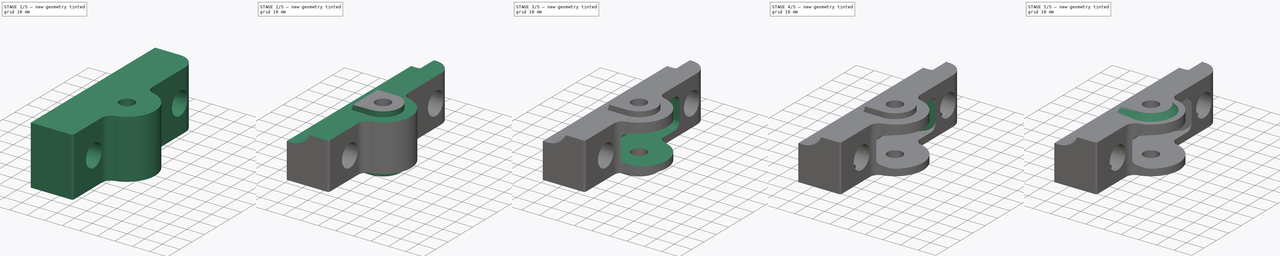
[diagram: build sequence overview — one tinted view per stage of 5, left to right]
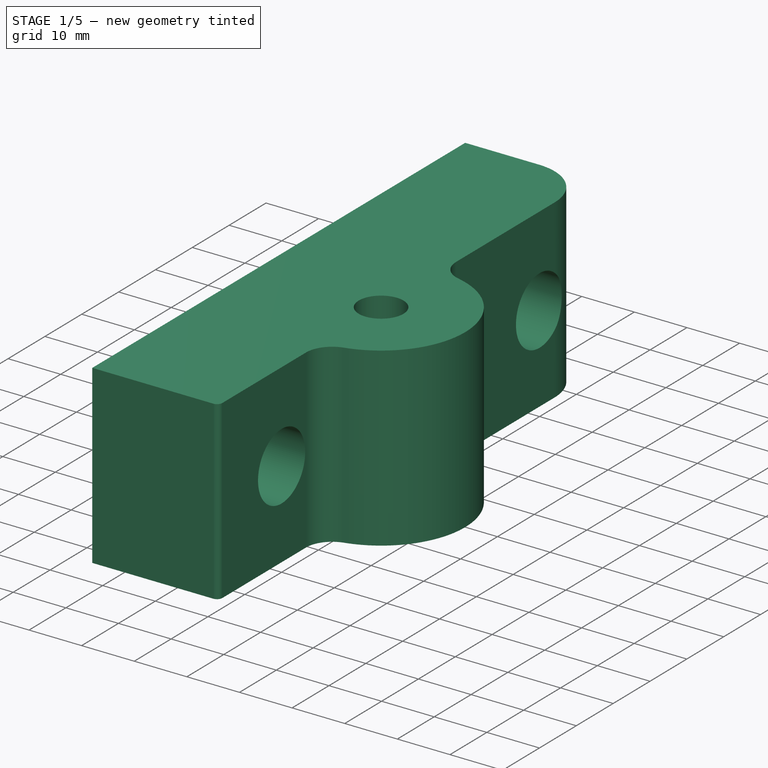
[diagram: stage 1 of 5 — iso view after this stage's code; geometry added in this stage tinted green]
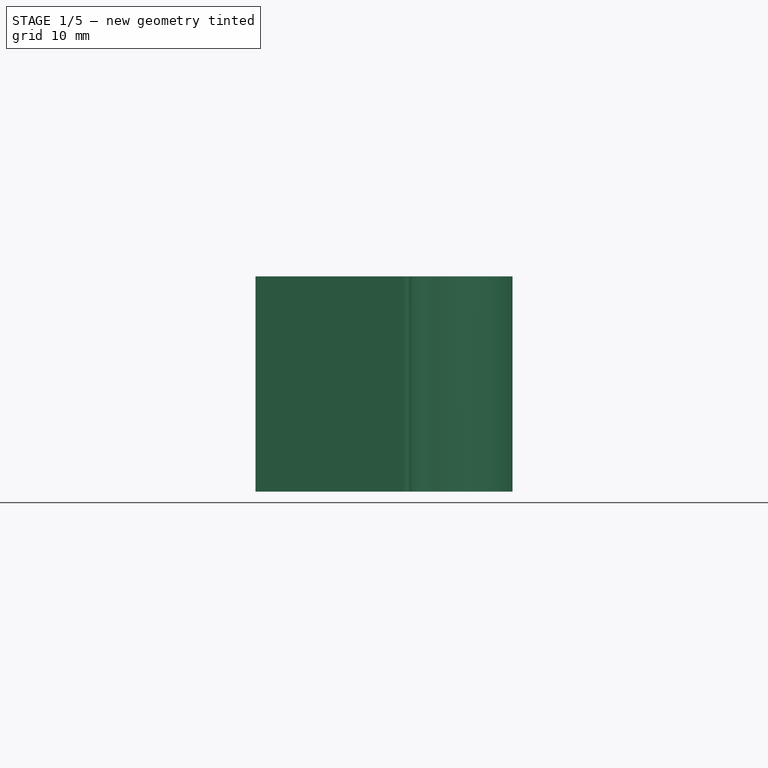
[diagram: stage 1 of 5 — front view after this stage's code; geometry added in this stage tinted green]
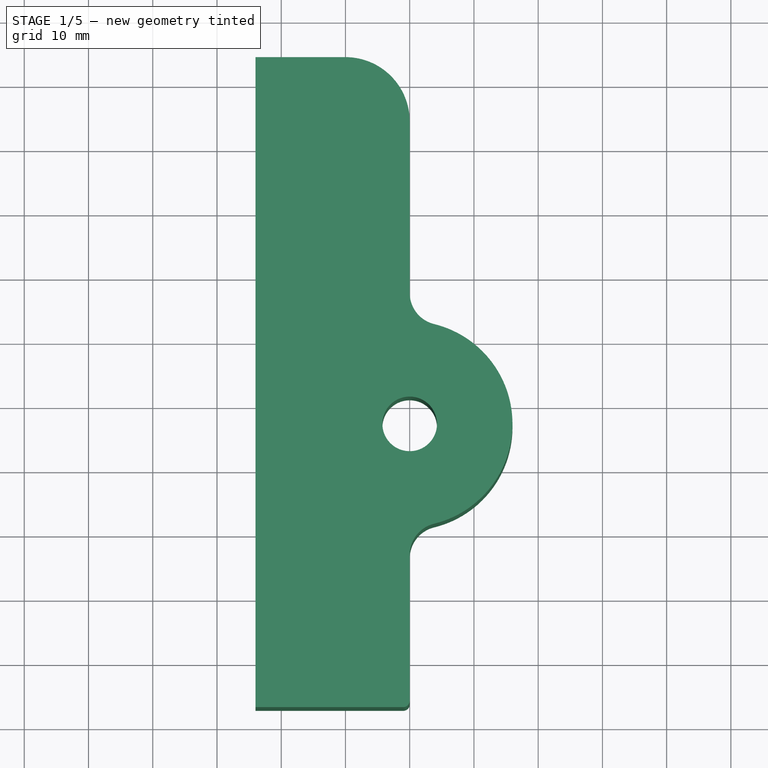
[diagram: stage 1 of 5 — top view after this stage's code; geometry added in this stage tinted green]
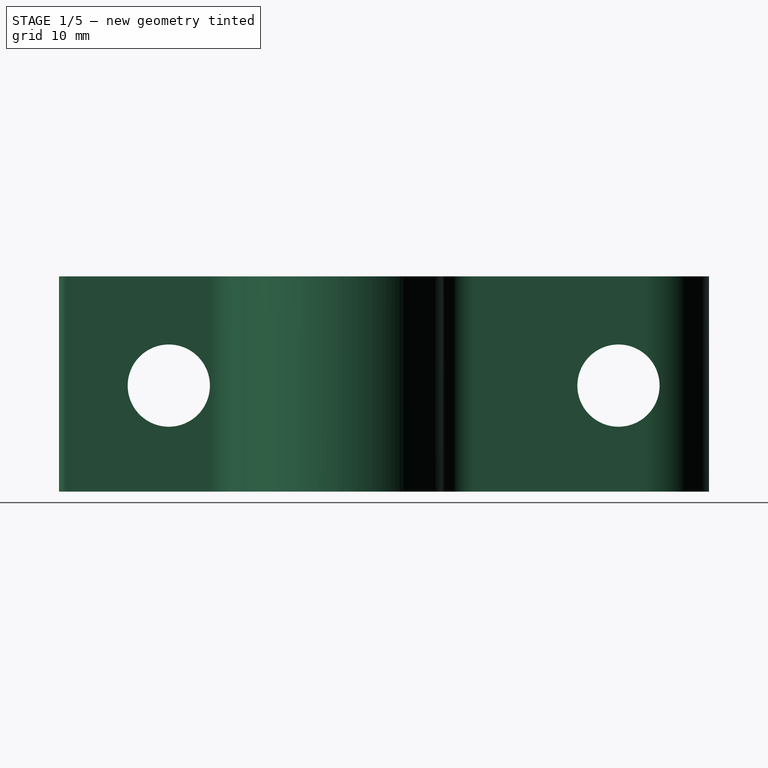
[diagram: stage 1 of 5 — right view after this stage's code; geometry added in this stage tinted green]
FCSTD DOCUMENT  (FreeCAD 0.16R5480 (Git))
Label: z_idler_body_olive_exten
License: All rights reserved
LicenseURL: http://en.wikipedia.org/wiki/All_rights_reserved
objects: Sketcher::SketchObject×12, PartDesign::Pocket×10, PartDesign::Pad×2, PartDesign::Chamfer×2, PartDesign::Fillet×1
note: 39 computed .brp shape members not serialized (recipe doc carries the construction recipe); baked Part::Feature solids carry a one-line shape summary decoded from their .brp

FEATURE [Sketcher::SketchObject] Sketch
  sketch-geometry (14):
    g0: ArcOfCircle CenterX=0 CenterY=-3 CenterZ=0 NormalX=0 NormalY=0 NormalZ=1 Radius=16 StartAngle=4.71239 EndAngle=7.85398
    g1: Circle CenterX=0 CenterY=-3 CenterZ=0 NormalX=0 NormalY=0 NormalZ=1 Radius=4.25
    g2: LineSegment StartX=0 StartY=44.1 StartZ=0 EndX=0 EndY=13 EndZ=0
    g3: LineSegment StartX=-24 StartY=54.1 StartZ=0 EndX=-24 EndY=-47.1 EndZ=0
    g4: LineSegment StartX=0 StartY=-19 StartZ=0 EndX=0 EndY=-46.1 EndZ=0
    g5: LineSegment [constr] StartX=-120 StartY=40 StartZ=0 EndX=90 EndY=40 EndZ=0
    g6: LineSegment [constr] StartX=-120 StartY=-30 StartZ=0 EndX=90 EndY=-30 EndZ=0
    g7: LineSegment StartX=-24 StartY=54.1 StartZ=0 EndX=-10 EndY=54.1 EndZ=0
    g8: LineSegment StartX=-24 StartY=-47.1 StartZ=0 EndX=-1 EndY=-47.1 EndZ=0
    g9: LineSegment [constr] StartX=-120 StartY=0 StartZ=0 EndX=90 EndY=0 EndZ=0
    g10: LineSegment [constr] StartX=0 StartY=110 StartZ=0 EndX=0 EndY=-100 EndZ=0
    g11: LineSegment [constr] StartX=90 StartY=40 StartZ=0 EndX=90 EndY=-30 EndZ=0
    g12: ArcOfCircle CenterX=-10 CenterY=44.1 CenterZ=0 NormalX=0 NormalY=0 NormalZ=1 Radius=10 StartAngle=0 EndAngle=1.5708
    g13: ArcOfCircle CenterX=-1 CenterY=-46.1 CenterZ=0 NormalX=0 NormalY=0 NormalZ=1 Radius=1 StartAngle=4.71239 EndAngle=6.28319
  constraints (40):
    c: Radius(g0) = 16
    c: Radius(g1) = 4.25
    c: Vertical(g2)
    c: Vertical(g3)
    c: Horizontal(g5)
    c: Horizontal(g6)
    c: Horizontal(g8)
    c: Horizontal(g7)
    c: DistanceY(g5,g6) = -70
    c: DistanceY(g5,g7) = 14.1
    c: Coincident(g3,g7)
    c: Coincident(g3,g8)
    c: PointOnObject(g9,g-1)
    c: Horizontal(g9)
    c: Vertical(g10)
    c: DistanceY(g6,g9) = 30
    c: PointOnObject(g1,g10)
    c: Vertical(g4)
    c: Coincident(g0,g1)
    c: Distance(g9) = 210
    c: DistanceX(g-1,g9) = 90
    c: Equal(g9,g5)
    c: Equal(g5,g6)
    c: Vertical(g11)
    c: PointOnObject(g9,g11)
    c: Equal(g9,g10)
    c: DistanceY(g-1,g10) = -100
    c: Tangent(g7,g12) = 1.5708
    c: Tangent(g2,g12) = 1.5708
    c: Radius(g12) = 10
    c: Tangent(g8,g13) = -1.5708
    c: Tangent(g4,g13) = 1.5708
    c: Distance(g3,g6) = 17.1
    c: PointOnObject(g-1,g4)
    c: DistanceX(g-1,g3) = -24
    c: Radius(g13) = 1
    c: DistanceY(g-1,g0) = -3
    c: PointOnObject(g-1,g10)
    c: Coincident(g0,g2)
    c: Coincident(g0,g4)
FEATURE [PartDesign::Pad] Pad
  Length = 28.5
  Length2 = 5
  Sketch = -> Sketch
  Type = 4
FEATURE [PartDesign::Fillet] Fillet
  Base = -> Pad [Edge14,Edge11]
  Radius = 5
FEATURE [Sketcher::SketchObject] Sketch002
  Placement = pos=(0,0,0) rot=(0.57735,0.57735,0.57735;2.0944rad)
  Support = -> Fillet [Face10]
  sketch-geometry (16):
    g0: LineSegment [constr] StartX=40 StartY=11.5 StartZ=0 EndX=40 EndY=-8.5 EndZ=0
    g1: LineSegment [constr] StartX=-30 StartY=11.5 StartZ=0 EndX=-30 EndY=-8.5 EndZ=0
    g2: LineSegment [constr] StartX=-30 StartY=11.5 StartZ=0 EndX=40 EndY=11.5 EndZ=0
    g3: Circle CenterX=-30 CenterY=11.5 CenterZ=0 NormalX=0 NormalY=0 NormalZ=1 Radius=6.4
    g4: Circle CenterX=40 CenterY=11.5 CenterZ=0 NormalX=0 NormalY=0 NormalZ=1 Radius=6.4
    g5: LineSegment [constr] StartX=-17 StartY=20.2 StartZ=0 EndX=27 EndY=20.2 EndZ=0
    g6: LineSegment [constr] StartX=30 StartY=17.2 StartZ=0 EndX=30 EndY=5.8 EndZ=0
    g7: LineSegment [constr] StartX=27 StartY=2.8 StartZ=0 EndX=-17 EndY=2.8 EndZ=0
    g8: LineSegment [constr] StartX=-20 StartY=5.8 StartZ=0 EndX=-20 EndY=17.2 EndZ=0
    g9: LineSegment [constr] StartX=0 StartY=43.5 StartZ=0 EndX=0 EndY=11.5 EndZ=0
    g10: LineSegment [constr] StartX=17.5 StartY=43.5 StartZ=0 EndX=17.5 EndY=11.5 EndZ=0
    g11: LineSegment [constr] StartX=-10 StartY=43.5 StartZ=0 EndX=-10 EndY=11.5 EndZ=0
    g12: ArcOfCircle [constr] CenterX=27 CenterY=17.2 CenterZ=0 NormalX=0 NormalY=0 NormalZ=1 Radius=3 StartAngle=0 EndAngle=1.5708
    g13: ArcOfCircle [constr] CenterX=27 CenterY=5.8 CenterZ=0 NormalX=0 NormalY=0 NormalZ=1 Radius=3 StartAngle=4.71239 EndAngle=6.28319
    g14: ArcOfCircle [constr] CenterX=-17 CenterY=17.2 CenterZ=0 NormalX=0 NormalY=0 NormalZ=1 Radius=3 StartAngle=1.5708 EndAngle=3.14159
    g15: ArcOfCircle [constr] CenterX=-17 CenterY=5.8 CenterZ=0 NormalX=0 NormalY=0 NormalZ=1 Radius=3 StartAngle=3.14159 EndAngle=4.71239
  constraints (46):
    c: Vertical(g1)
    c: Vertical(g0)
    c: DistanceX(g-1,g0) = 40
    c: DistanceX(g1,g0) = 70
    c: Horizontal(g2)
    c: Coincident(g0,g2)
    c: Coincident(g1,g2)
    c: Coincident(g1,g3)
    c: Coincident(g0,g4)
    c: Radius(g3) = 6.4
    c: Equal(g3,g4)
    c: Horizontal(g5)
    c: Horizontal(g7)
    c: Vertical(g6)
    c: Vertical(g8)
    c: DistanceY(g-1,g1) = 11.5
    c: Distance(g0) = 20
    c: Equal(g1,g0)
    c: PointOnObject(g9,g-2)
    c: Vertical(g9)
    c: Vertical(g10)
    c: Vertical(g11)
    c: DistanceX(g9,g10) = 17.5
    c: PointOnObject(g10,g2)
    c: PointOnObject(g9,g2)
    c: PointOnObject(g11,g2)
    c: Equal(g11,g9)
    c: Equal(g9,g10)
    c: Distance(g10) = 32
    c: DistanceX(g11,g9) = 10
    c: Tangent(g5,g12) = 1.5708
    c: Tangent(g6,g12) = 1.5708
    c: DistanceY(g5,g0) = -8.7
    c: Radius(g12) = 3
    c: Tangent(g6,g13) = 1.5708
    c: Tangent(g7,g13) = 1.5708
    c: DistanceY(g7,g0) = 8.7
    c: DistanceX(g6,g0) = 10
    c: Equal(g13,g12)
    c: Tangent(g5,g14) = 1.5708
    c: Tangent(g8,g14) = 1.5708
    c: Radius(g14) = 3
    c: Tangent(g8,g15) = 1.5708
    c: Tangent(g7,g15) = 1.5708
    c: Equal(g15,g14)
    c: DistanceX(g1,g8) = 10
FEATURE [PartDesign::Pocket] Pocket
  Length = 5
  Midplane = true
  Sketch = -> Sketch002
  Type = 1
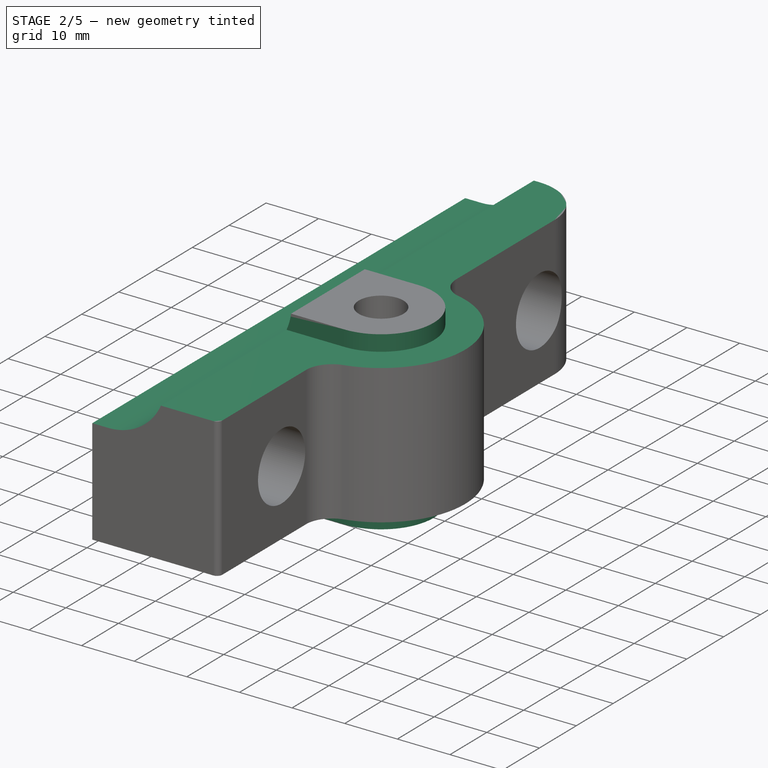
[diagram: stage 2 of 5 — iso view after this stage's code; geometry added in this stage tinted green]
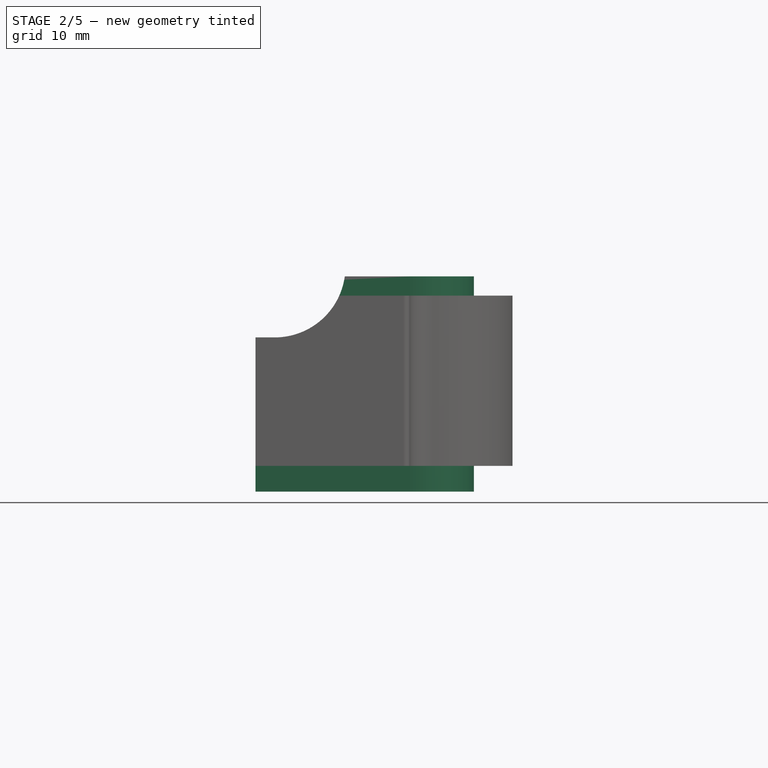
[diagram: stage 2 of 5 — front view after this stage's code; geometry added in this stage tinted green]
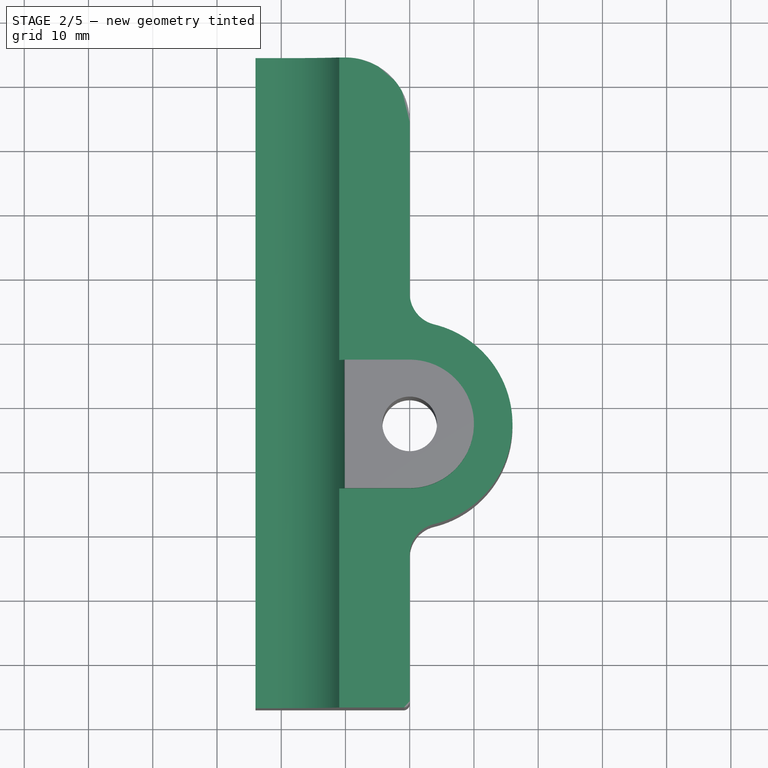
[diagram: stage 2 of 5 — top view after this stage's code; geometry added in this stage tinted green]
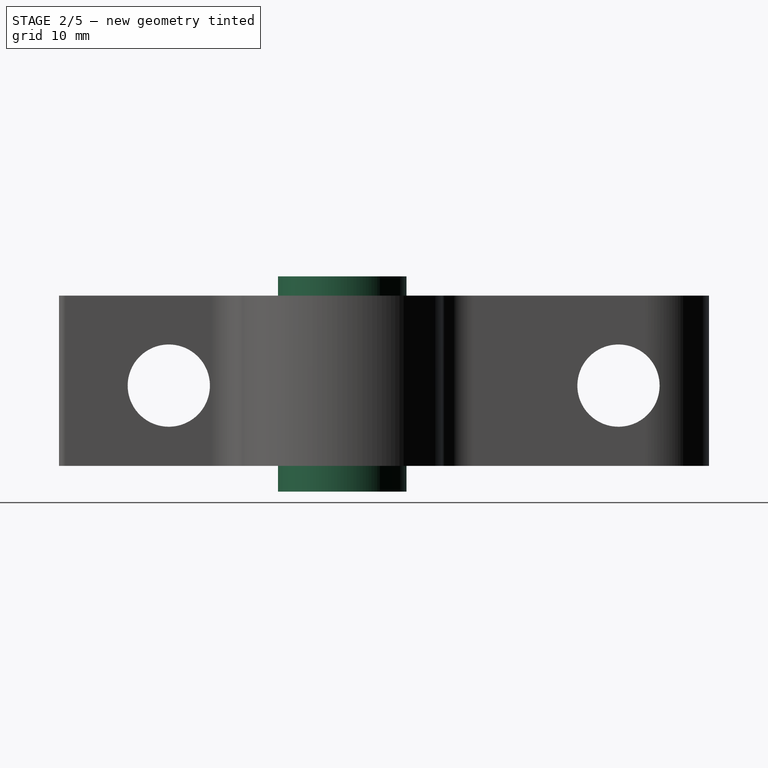
[diagram: stage 2 of 5 — right view after this stage's code; geometry added in this stage tinted green]
FEATURE [Sketcher::SketchObject] Sketch013
  Placement = pos=(0,0,28.5) rot=(0,0,1;0rad)
  Support = -> Pocket [Face5]
  sketch-geometry (8):
    g0: ArcOfCircle CenterX=0 CenterY=-3 CenterZ=0 NormalX=0 NormalY=0 NormalZ=1 Radius=10 StartAngle=4.71239 EndAngle=7.85398
    g1: LineSegment StartX=-40 StartY=60 StartZ=0 EndX=30 EndY=60 EndZ=0
    g2: LineSegment StartX=30 StartY=60 StartZ=0 EndX=30 EndY=-60 EndZ=0
    g3: LineSegment StartX=30 StartY=-60 StartZ=0 EndX=-40 EndY=-60 EndZ=0
    g4: LineSegment StartX=-40 StartY=-60 StartZ=0 EndX=-40 EndY=-13 EndZ=0
    g5: LineSegment StartX=-40 StartY=7 StartZ=0 EndX=5e-12 EndY=7 EndZ=0
    g6: LineSegment StartX=-40 StartY=-13 StartZ=0 EndX=3e-12 EndY=-13 EndZ=0
    g7: LineSegment StartX=-40 StartY=7 StartZ=0 EndX=-40 EndY=60 EndZ=0
  constraints (24):
    c: Coincident(g1,g2)
    c: Coincident(g1,g7)
    c: Coincident(g2,g3)
    c: Coincident(g3,g4)
    c: Coincident(g4,g6)
    c: Coincident(g5,g7)
    c: Horizontal(g5)
    c: Horizontal(g6)
    c: DistanceX(g5) = 40
    c: Equal(g6,g5)
    c: Distance(g-1,g3) = 60
    c: Distance(g2) = 120
    c: Vertical(g7)
    c: Vertical(g4)
    c: Vertical(g2)
    c: Horizontal(g1)
    c: Horizontal(g3)
    c: Radius(g0) = 10
    c: DistanceY(g-1,g0) = -3
    c: PointOnObject(g0,g-2)
    c: Coincident(g0,g6)
    c: Coincident(g0,g5)
    c: PointOnObject(g0,g-2)
    c: PointOnObject(g0,g-2)
FEATURE [PartDesign::Pocket] Pocket001
  Length = 3
  Sketch = -> Sketch013
  Type = 0
FEATURE [Sketcher::SketchObject] Sketch024
  Placement = pos=(0,0,-5) rot=(1,0,0;3.14159rad)
  Support = -> Pocket001 [Face2]
  sketch-geometry (8):
    g0: LineSegment StartX=5e-12 StartY=13 StartZ=0 EndX=-40 EndY=13 EndZ=0
    g1: LineSegment StartX=-40 StartY=-7 StartZ=0 EndX=3e-12 EndY=-7 EndZ=0
    g2: LineSegment StartX=-40 StartY=13 StartZ=0 EndX=-40 EndY=65 EndZ=0
    g3: LineSegment StartX=-40 StartY=65 StartZ=0 EndX=24 EndY=65 EndZ=0
    g4: LineSegment StartX=24 StartY=65 StartZ=0 EndX=24 EndY=-65 EndZ=0
    g5: LineSegment StartX=24 StartY=-65 StartZ=0 EndX=-40 EndY=-65 EndZ=0
    g6: LineSegment StartX=-40 StartY=-7 StartZ=0 EndX=-40 EndY=-65 EndZ=0
    g7: ArcOfCircle CenterX=0 CenterY=3 CenterZ=0 NormalX=0 NormalY=0 NormalZ=1 Radius=10 StartAngle=4.71239 EndAngle=7.85398
  constraints (25):
    c: Horizontal(g1)
    c: Horizontal(g0)
    c: Coincident(g1,g6)
    c: Coincident(g5,g6)
    c: Coincident(g2,g3)
    c: Coincident(g3,g4)
    c: Coincident(g4,g5)
    c: Horizontal(g3)
    c: Horizontal(g5)
    c: Vertical(g2)
    c: Vertical(g6)
    c: Vertical(g4)
    c: Coincident(g0,g2)
    c: DistanceX(g-1,g0) = -40
    c: PointOnObject(g1,g2)
    c: DistanceY(g-1,g4) = -65
    c: DistanceY(g4) = -130
    c: DistanceX(g-1,g3) = 24
    c: Radius(g7) = 10
    c: DistanceY(g-1,g7) = 3
    c: PointOnObject(g7,g-2)
    c: Coincident(g7,g1)
    c: Coincident(g7,g0)
    c: PointOnObject(g0,g-2)
    c: PointOnObject(g1,g-2)
FEATURE [PartDesign::Pocket] Pocket002
  Length = 4
  Sketch = -> Sketch024
  Type = 0
FEATURE [Sketcher::SketchObject] Sketch029
  Placement = pos=(0,54.1,0) rot=(0,0.707107,0.707107;3.14159rad)
  Support = -> Pocket002 [Face8]
  sketch-geometry (4):
    g0: LineSegment [constr] StartX=21 StartY=19 StartZ=0 EndX=21 EndY=-10 EndZ=0
    g1: ArcOfCircle CenterX=21 CenterY=30 CenterZ=0 NormalX=0 NormalY=0 NormalZ=1 Radius=11 StartAngle=0 EndAngle=4.71239
    g2: LineSegment StartX=21 StartY=19 StartZ=0 EndX=32 EndY=19 EndZ=0
    g3: LineSegment StartX=32 StartY=30 StartZ=0 EndX=32 EndY=19 EndZ=0
  constraints (4):
    c: Coincident(g0,g1)
    c: Coincident(g0,g2)
    c: Coincident(g1,g3)
    c: Coincident(g2,g3)
FEATURE [PartDesign::Pocket] Pocket003
  Length = 5
  Sketch = -> Sketch029
  Type = 1
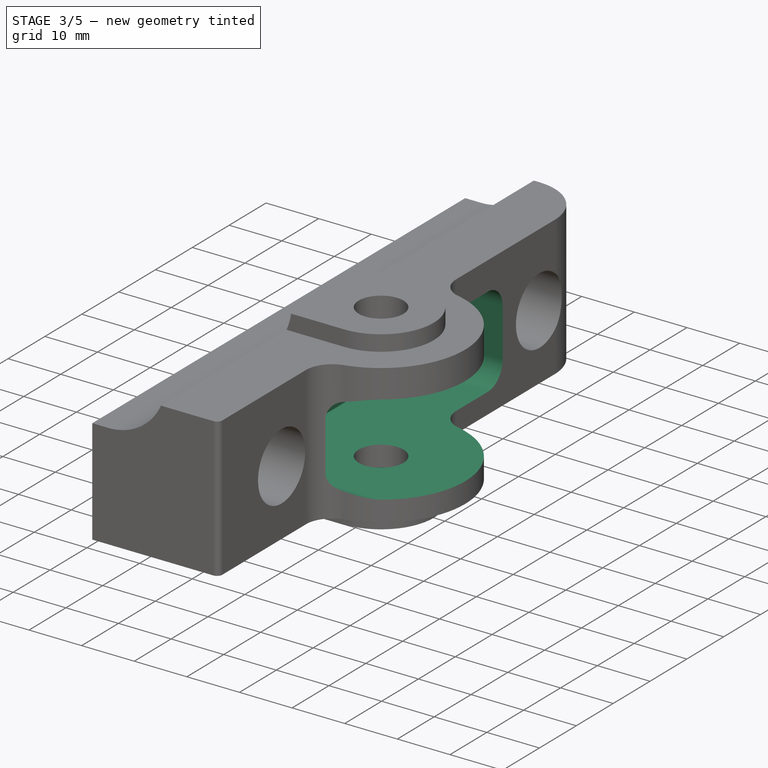
[diagram: stage 3 of 5 — iso view after this stage's code; geometry added in this stage tinted green]
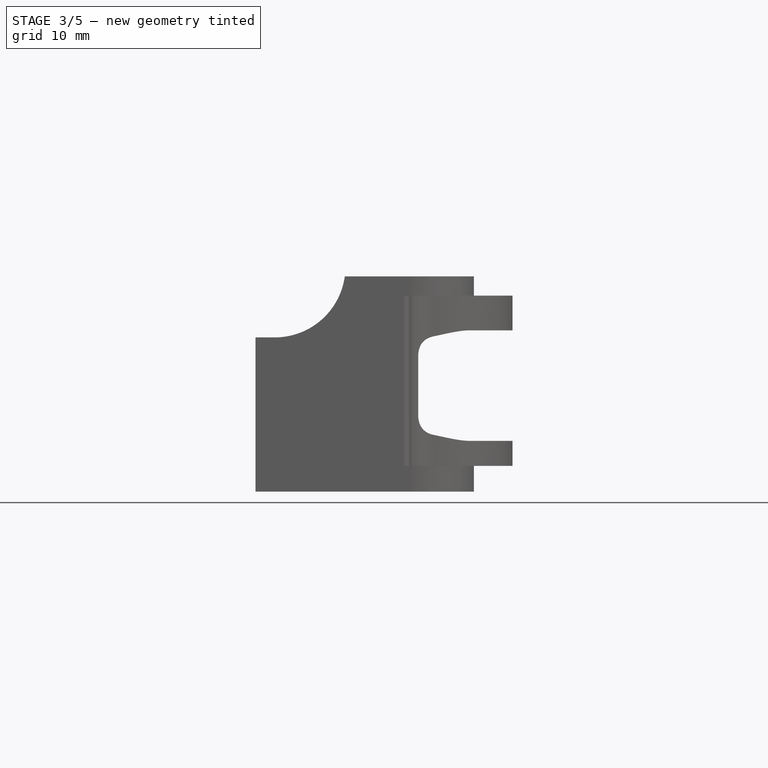
[diagram: stage 3 of 5 — front view after this stage's code; geometry added in this stage tinted green]
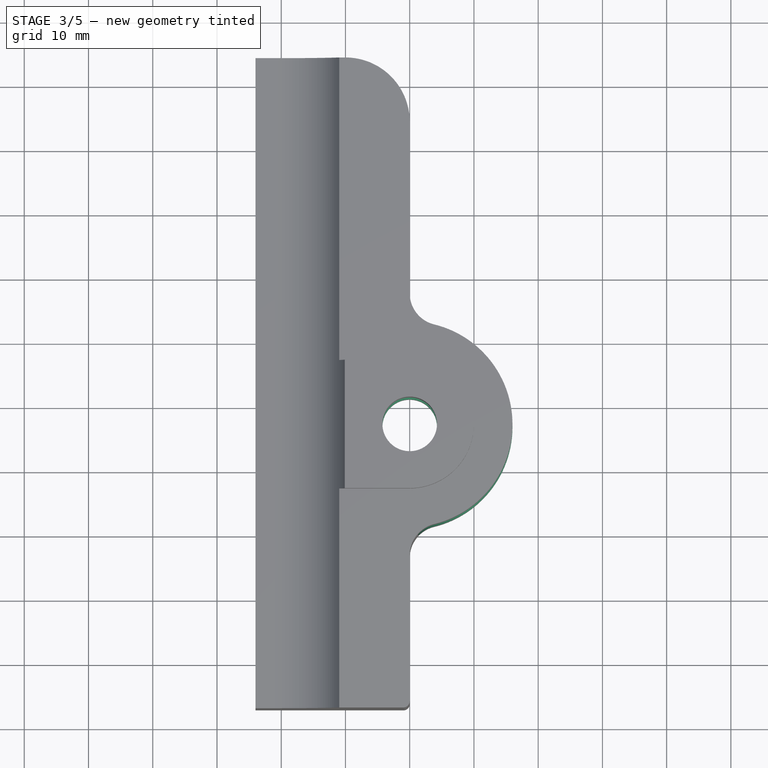
[diagram: stage 3 of 5 — top view after this stage's code; geometry added in this stage tinted green]
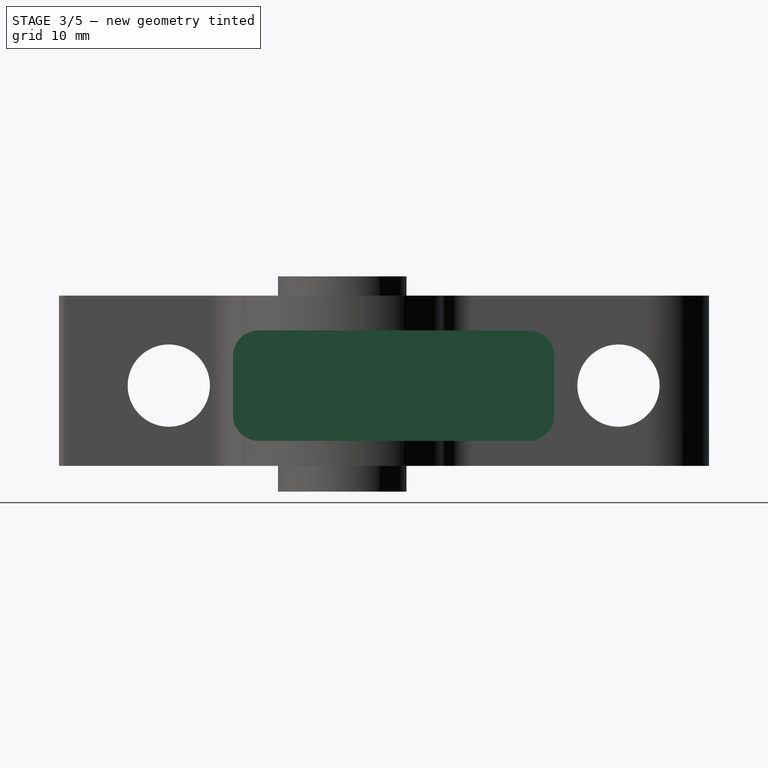
[diagram: stage 3 of 5 — right view after this stage's code; geometry added in this stage tinted green]
FEATURE [Sketcher::SketchObject] Sketch027
  Placement = pos=(0,0,-5) rot=(1,0,0;3.14159rad)
  Support = -> Pocket003 [Face21]
  sketch-geometry (8):
    g0: Circle [constr] CenterX=0 CenterY=3 CenterZ=0 NormalX=0 NormalY=0 NormalZ=1 Radius=7.67876
    g1: LineSegment StartX=3.92598 StartY=9.8 StartZ=0 EndX=-3.92598 EndY=9.8 EndZ=0
    g2: LineSegment StartX=-3.92598 StartY=9.8 StartZ=0 EndX=-7.85196 EndY=3 EndZ=0
    g3: LineSegment StartX=-7.85196 StartY=3 StartZ=0 EndX=-3.92598 EndY=-3.8 EndZ=0
    g4: LineSegment StartX=-3.92598 StartY=-3.8 StartZ=0 EndX=3.92598 EndY=-3.8 EndZ=0
    g5: LineSegment StartX=3.92598 StartY=-3.8 StartZ=0 EndX=7.85196 EndY=3 EndZ=0
    g6: LineSegment StartX=7.85196 StartY=3 StartZ=0 EndX=3.92598 EndY=9.8 EndZ=0
    g7: Circle [constr] CenterX=0 CenterY=3 CenterZ=0 NormalX=0 NormalY=0 NormalZ=1 Radius=7.85196
  constraints (18):
    c: Coincident(g1,g2)
    c: Coincident(g2,g3)
    c: Coincident(g3,g4)
    c: Coincident(g4,g5)
    c: Coincident(g5,g6)
    c: Coincident(g6,g1)
    c: Equal(g1, g2-g6) x5
    c: PointOnObject(g1,g7)
    c: PointOnObject(g2,g7)
    c: PointOnObject(g3,g7)
    c: PointOnObject(g4,g7)
    c: PointOnObject(g5,g7)
    c: PointOnObject(g6,g7)
    c: Horizontal(g1)
    c: DistanceY(g1,g4) = -13.6
    c: Coincident(g0,g7)
    c: DistanceY(g-1,g0) = 3
    c: PointOnObject(g0,g-2)
FEATURE [PartDesign::Pocket] Pocket004
  Length = 4
  Sketch = -> Sketch027
  Type = 0
FEATURE [Sketcher::SketchObject] Sketch025
  Placement = pos=(0,0,0) rot=(0.57735,0.57735,0.57735;2.0944rad)
  Support = -> Pocket004 [Face10]
  sketch-geometry (9):
    g0: LineSegment [constr] StartX=-30 StartY=11.5 StartZ=0 EndX=40 EndY=11.5 EndZ=0
    g1: LineSegment StartX=-16 StartY=20.1 StartZ=0 EndX=26 EndY=20.1 EndZ=0
    g2: LineSegment StartX=30 StartY=16 StartZ=0 EndX=30 EndY=7 EndZ=0
    g3: LineSegment StartX=26 StartY=2.9 StartZ=0 EndX=-16 EndY=2.9 EndZ=0
    g4: LineSegment StartX=-20 StartY=7 StartZ=0 EndX=-20 EndY=16 EndZ=0
    g5: ArcOfCircle CenterX=-16 CenterY=16.0988 CenterZ=0 NormalX=0 NormalY=0 NormalZ=1 Radius=4.00122 StartAngle=1.5708 EndAngle=3.16628
    g6: ArcOfCircle CenterX=26 CenterY=16.0988 CenterZ=0 NormalX=0 NormalY=0 NormalZ=1 Radius=4.00122 StartAngle=6.2585 EndAngle=7.85398
    g7: ArcOfCircle CenterX=26 CenterY=6.90122 CenterZ=0 NormalX=0 NormalY=0 NormalZ=1 Radius=4.00122 StartAngle=4.71239 EndAngle=6.30788
    g8: ArcOfCircle CenterX=-16 CenterY=6.90122 CenterZ=0 NormalX=0 NormalY=0 NormalZ=1 Radius=4.00122 StartAngle=3.1169 EndAngle=4.71239
  constraints (15):
    c: Coincident(g5,g1)
    c: Coincident(g1,g6)
    c: Coincident(g2,g6)
    c: Coincident(g2,g7)
    c: Coincident(g3,g7)
    c: Coincident(g8,g3)
    c: Coincident(g5,g4)
    c: Coincident(g8,g4)
    c: DistanceY(g-1,g0) = 11.5
    c: Horizontal(g3)
    c: Horizontal(g1)
    c: Vertical(g2)
    c: Vertical(g4)
    c: DistanceY(g3,g0) = 8.6
    c: DistanceY(g1,g0) = -8.6
FEATURE [PartDesign::Pocket] Pocket005
  Length = 32
  Midplane = true
  Sketch = -> Sketch025
  Type = 0
FEATURE [Sketcher::SketchObject] Sketch028
  Placement = pos=(0,54.1,0) rot=(0,0.707107,0.707107;3.14159rad)
  Support = -> Pocket005 [Face8]
  sketch-geometry (2):
    g0: LineSegment [constr] StartX=21 StartY=20 StartZ=0 EndX=21 EndY=-20 EndZ=0
    g1: Circle CenterX=21 CenterY=-20 CenterZ=0 NormalX=0 NormalY=0 NormalZ=1 Radius=22
  constraints (5):
    c: DistanceY(g-1,g0) = -20
    c: Vertical(g0)
    c: DistanceY(g0) = -40
    c: Coincident(g0,g1)
    c: Radius(g1) = 22
FEATURE [PartDesign::Pocket] Pocket006
  Length = 25
  Sketch = -> Sketch028
  Type = 0
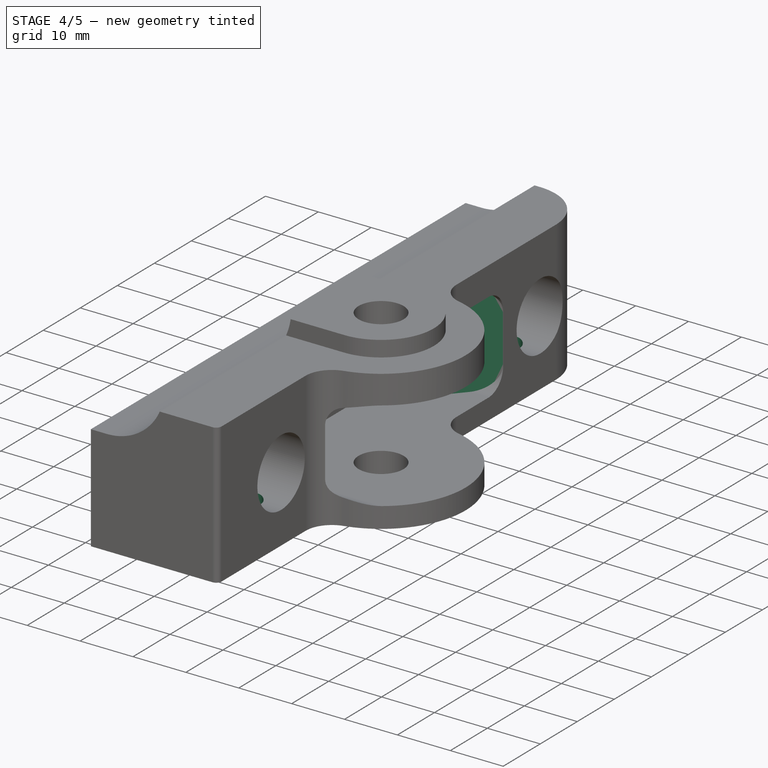
[diagram: stage 4 of 5 — iso view after this stage's code; geometry added in this stage tinted green]
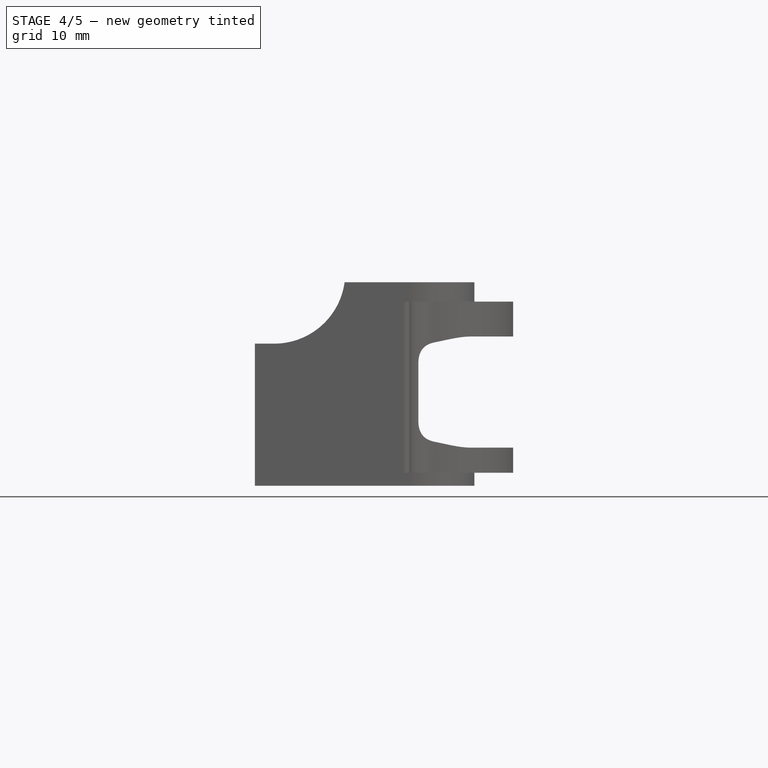
[diagram: stage 4 of 5 — front view after this stage's code; geometry added in this stage tinted green]
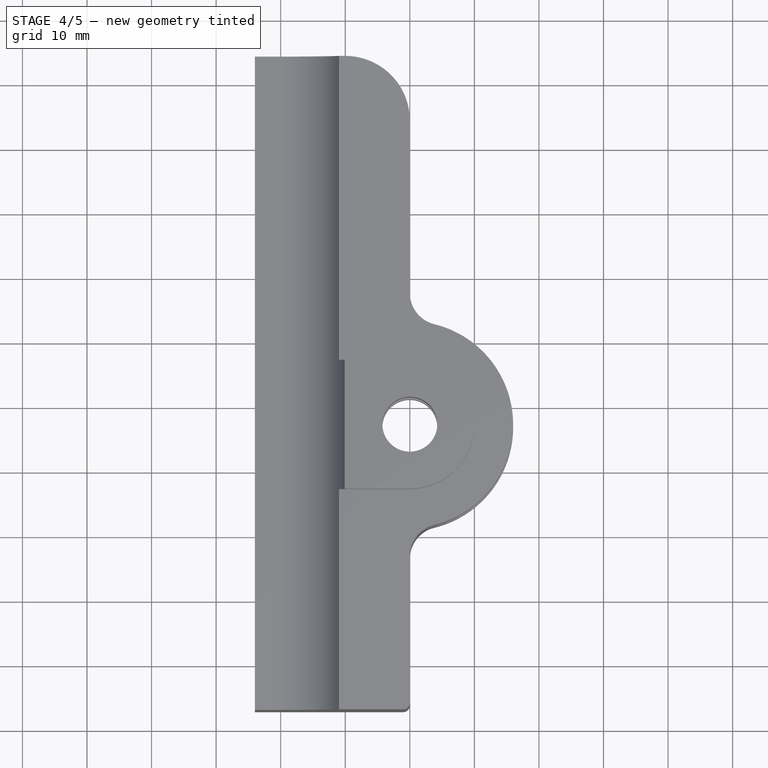
[diagram: stage 4 of 5 — top view after this stage's code; geometry added in this stage tinted green]
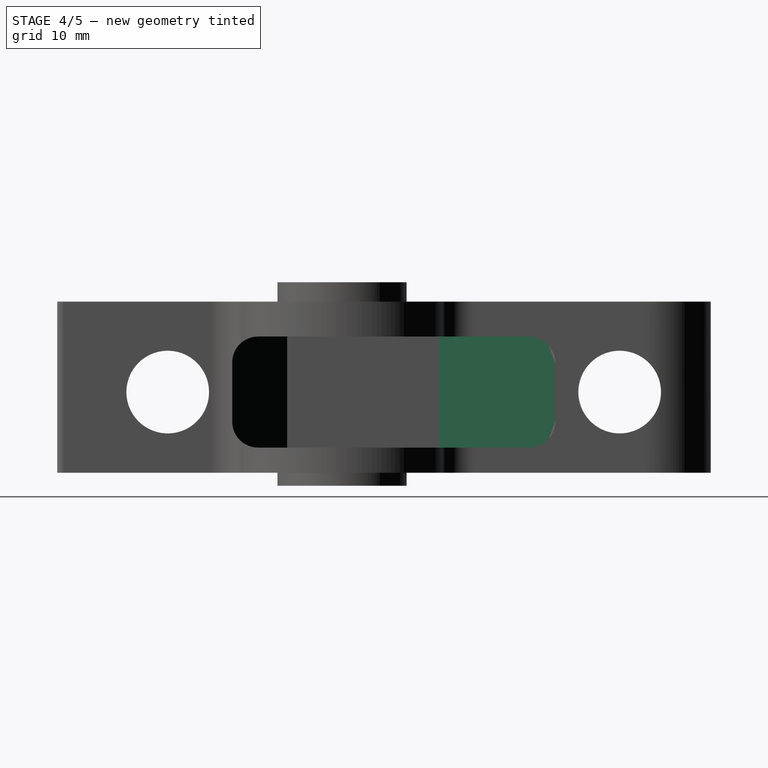
[diagram: stage 4 of 5 — right view after this stage's code; geometry added in this stage tinted green]
FEATURE [Sketcher::SketchObject] Sketch031
  Placement = pos=(0,0,-1) rot=(1,0,0;3.14159rad)
  Support = -> Pocket006 [Face2]
  sketch-geometry (3):
    g0: LineSegment [constr] StartX=-6 StartY=30 StartZ=0 EndX=-6 EndY=-40 EndZ=0
    g1: Circle CenterX=-6 CenterY=30 CenterZ=0 NormalX=0 NormalY=0 NormalZ=1 Radius=2.2
    g2: Circle CenterX=-6 CenterY=-40 CenterZ=0 NormalX=0 NormalY=0 NormalZ=1 Radius=2.2
  constraints (8):
    c: Vertical(g0)
    c: DistanceY(g-1,g0) = 30
    c: DistanceX(g-1,g0) = -6
    c: DistanceY(g-1,g0) = -40
    c: Radius(g2) = 2.2
    c: Equal(g2,g1)
    c: Coincident(g0,g1)
    c: Coincident(g0,g2)
FEATURE [PartDesign::Pocket] Pocket007
  Length = 9
  Sketch = -> Sketch031
  Type = 0
FEATURE [Sketcher::SketchObject] Sketch032
  ExternalGeometry = -> [Pocket007]
  Placement = pos=(0,0,2.9) rot=(0,0,1;0rad)
  Support = -> Pocket007 [Face33]
  sketch-geometry (6):
    g0: LineSegment StartX=0 StartY=-22 StartZ=0 EndX=-16 EndY=-11.5 EndZ=0
    g1: LineSegment StartX=-16 StartY=-11.5 StartZ=0 EndX=-16 EndY=-22 EndZ=0
    g2: LineSegment StartX=0 StartY=-22 StartZ=0 EndX=-16 EndY=-22 EndZ=0
    g3: LineSegment StartX=-16 StartY=12 StartZ=0 EndX=0 EndY=30.1 EndZ=0
    g4: LineSegment StartX=0 StartY=30.1 StartZ=0 EndX=-16 EndY=30.1 EndZ=0
    g5: LineSegment StartX=-16 StartY=30.1 StartZ=0 EndX=-16 EndY=12 EndZ=0
  constraints (16):
    c: Coincident(g0,g1)
    c: Coincident(g0,g2)
    c: Coincident(g1,g2)
    c: Coincident(g3,g4)
    c: Coincident(g3,g5)
    c: Coincident(g4,g5)
    c: DistanceY(g-1,g3) = 30.1
    c: Horizontal(g4)
    c: Vertical(g5)
    c: Horizontal(g2)
    c: PointOnObject(g3,g-2)
    c: PointOnObject(g0,g-2)
    c: Vertical(g1)
    c: DistanceY(g-1,g0) = -22
    c: DistanceY(g-1,g0) = -11.5
    c: DistanceY(g-1,g3) = 12
FEATURE [PartDesign::Pad] Pad001
  Length = 10
  Length2 = 100
  Sketch = -> Sketch032
  Type = 3
  UpToFace = -> Pocket007 [Face37]
FEATURE [Sketcher::SketchObject] Sketch038
  Placement = pos=(0,0,-5) rot=(1,0,0;3.14159rad)
  Support = -> Pad001 [Face30]
  sketch-geometry (4):
    g0: LineSegment StartX=-35 StartY=15 StartZ=0 EndX=15 EndY=15 EndZ=0
    g1: LineSegment StartX=15 StartY=15 StartZ=0 EndX=15 EndY=-11 EndZ=0
    g2: LineSegment StartX=15 StartY=-11 StartZ=0 EndX=-35 EndY=-11 EndZ=0
    g3: LineSegment StartX=-35 StartY=-11 StartZ=0 EndX=-35 EndY=15 EndZ=0
  constraints (12):
    c: Coincident(g0,g1)
    c: Coincident(g1,g2)
    c: Coincident(g2,g3)
    c: Coincident(g3,g0)
    c: Horizontal(g0)
    c: Horizontal(g2)
    c: Vertical(g1)
    c: Vertical(g3)
    c: DistanceX(g-1,g0) = 15
    c: DistanceX(g-1,g0) = -35
    c: DistanceY(g-1,g0) = 15
    c: DistanceY(g1) = -26
FEATURE [PartDesign::Pocket] Pocket008
  Length = 2
  Sketch = -> Sketch038
  Type = 0
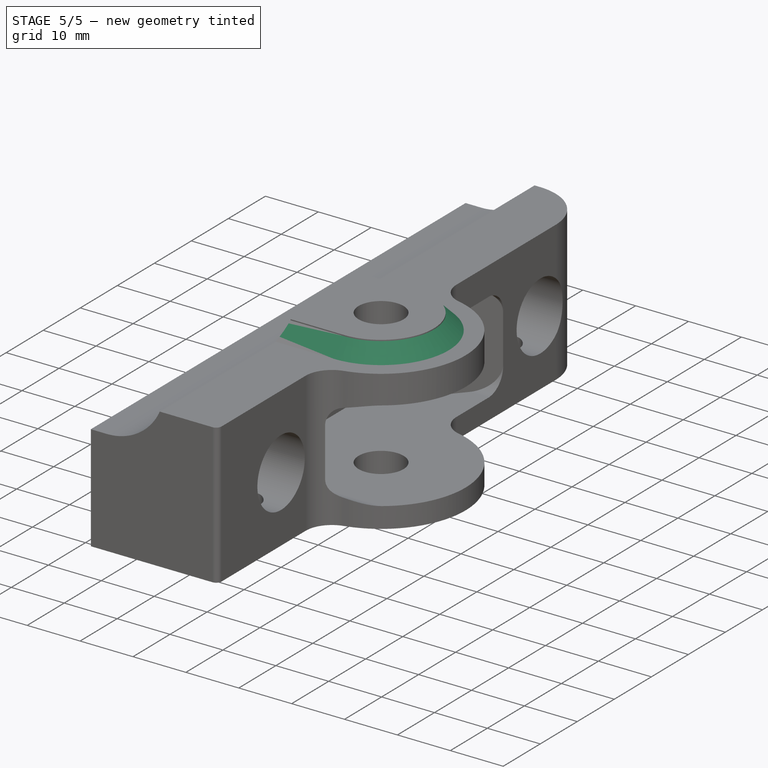
[diagram: stage 5 of 5 — iso view after this stage's code; geometry added in this stage tinted green]
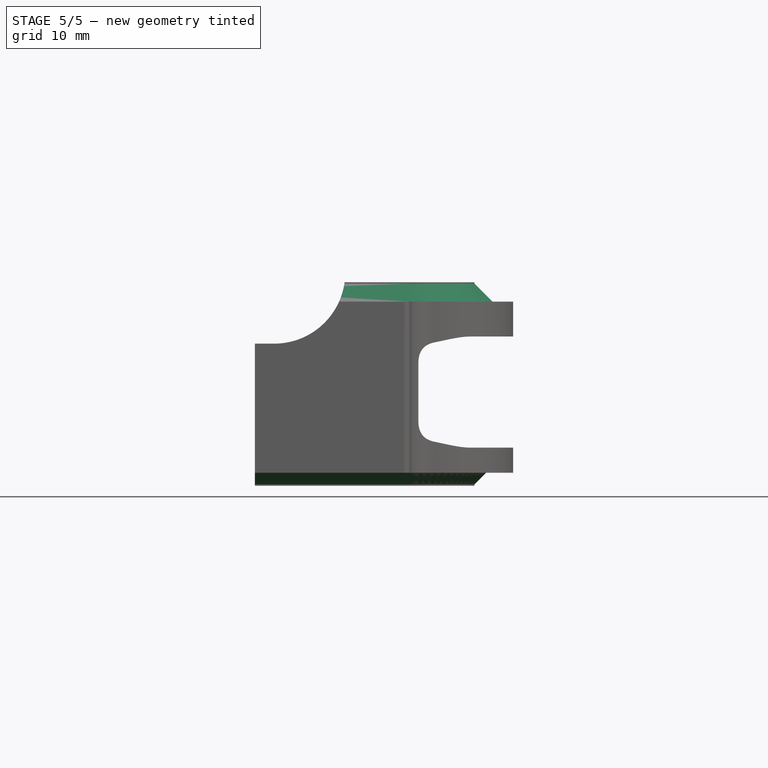
[diagram: stage 5 of 5 — front view after this stage's code; geometry added in this stage tinted green]
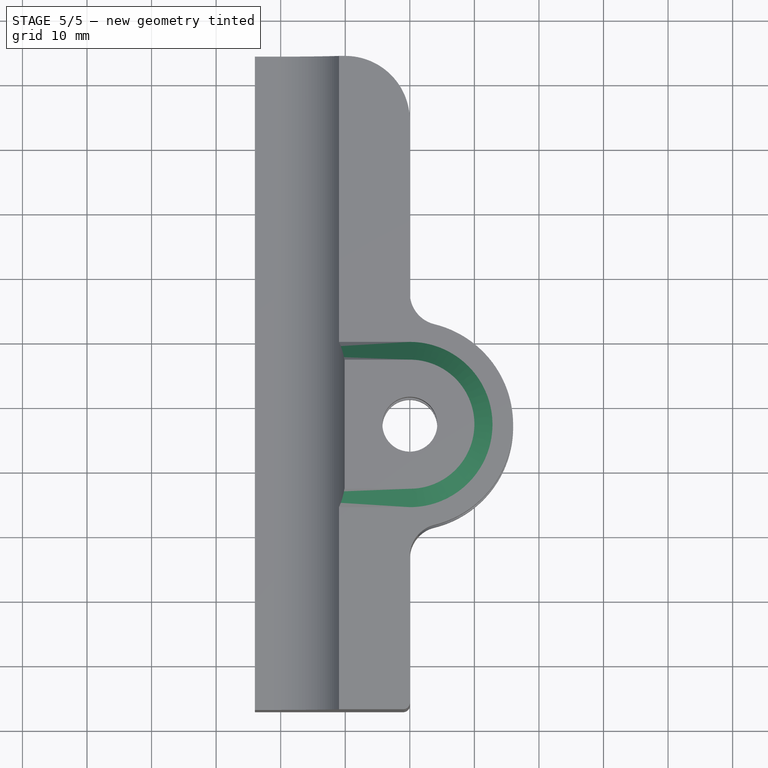
[diagram: stage 5 of 5 — top view after this stage's code; geometry added in this stage tinted green]
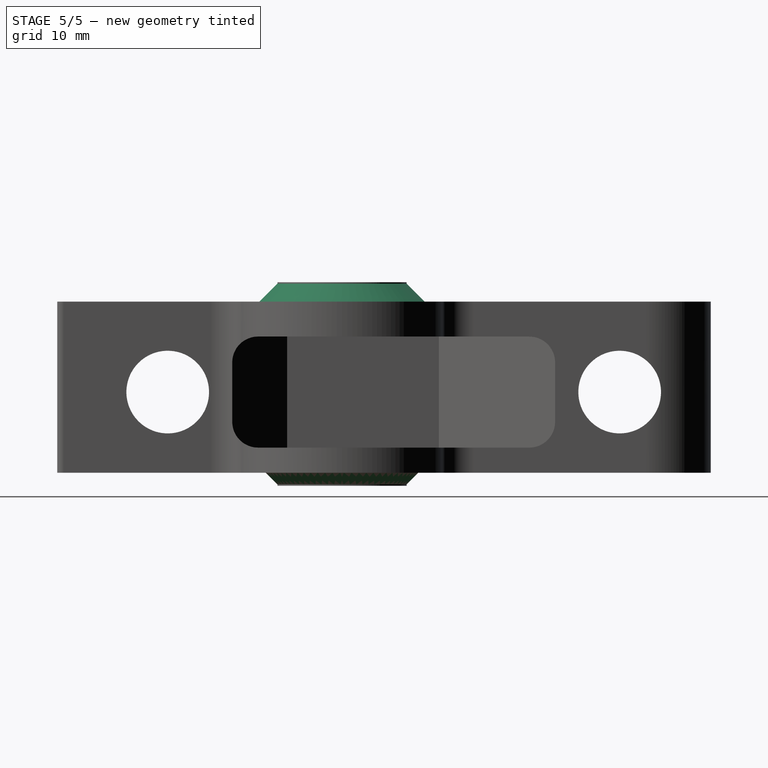
[diagram: stage 5 of 5 — right view after this stage's code; geometry added in this stage tinted green]
FEATURE [Sketcher::SketchObject] Sketch039
  ExternalGeometry = -> [Pocket008]
  Placement = pos=(0,0,-1) rot=(1,0,0;3.14159rad)
  Support = -> Pocket008 [Face2]
  sketch-geometry (2):
    g0: Circle CenterX=-6 CenterY=30 CenterZ=0 NormalX=0 NormalY=0 NormalZ=1 Radius=4.4
    g1: Circle CenterX=-6 CenterY=-40 CenterZ=0 NormalX=0 NormalY=0 NormalZ=1 Radius=4.4
  constraints (4):
    c: Coincident(g1,g-4)
    c: Coincident(g0,g-3)
    c: Radius(g0) = 4.4
    c: Equal(g1,g0)
FEATURE [PartDesign::Pocket] Pocket009
  Length = 1.5
  Sketch = -> Sketch039
  Type = 0
FEATURE [PartDesign::Chamfer] Chamfer
  Base = -> Pocket009 [Edge19,Edge20,Edge21]
  Size = 1.8
FEATURE [PartDesign::Chamfer] Chamfer001
  Base = -> Chamfer [Edge104,Edge105,Edge106]
  Size = 2.8
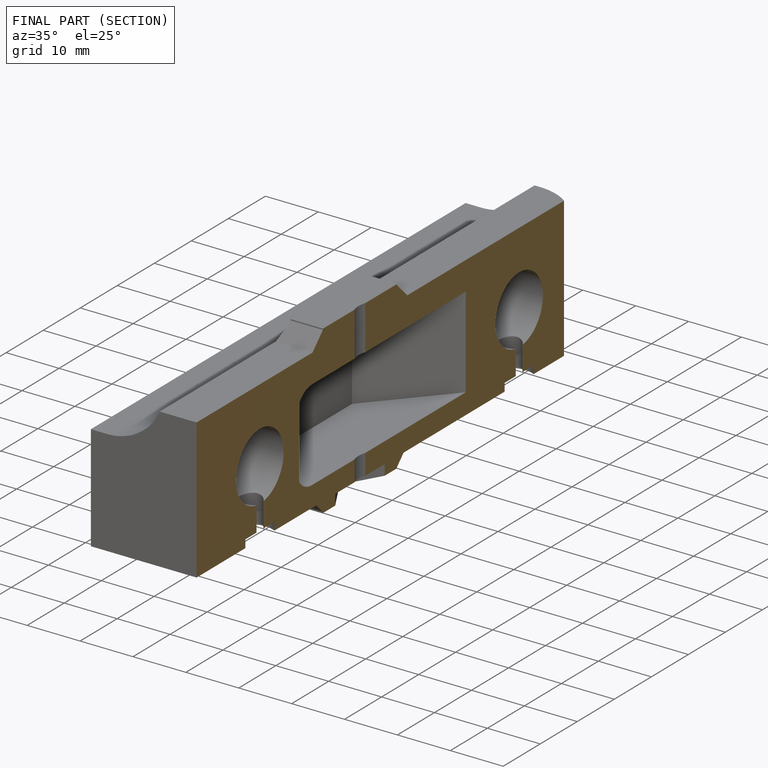
[diagram: finished part — half-section view (interior)]
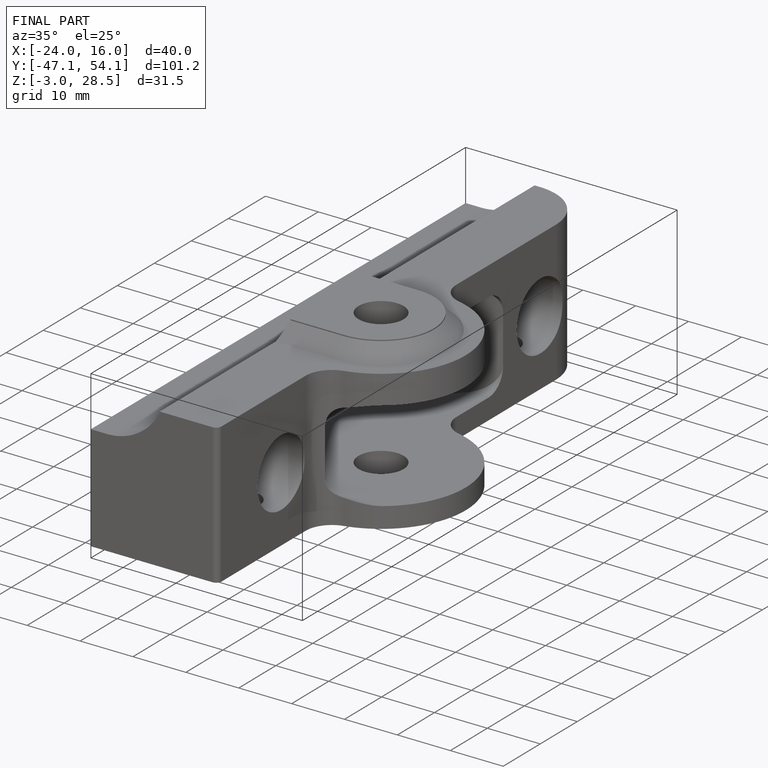
[diagram: finished part — iso view with bounding-box wireframe]
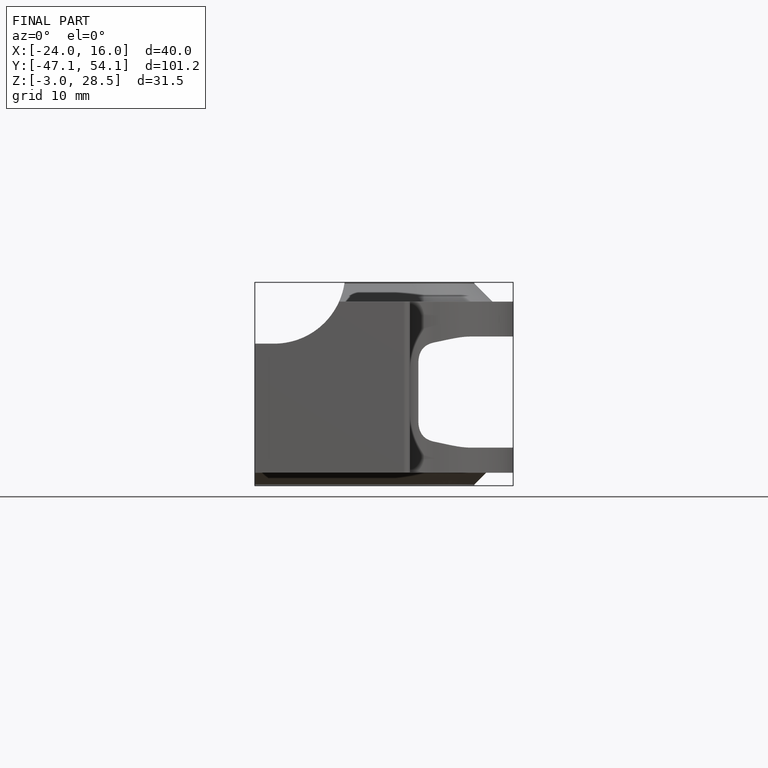
[diagram: finished part — front view with bounding-box wireframe]
